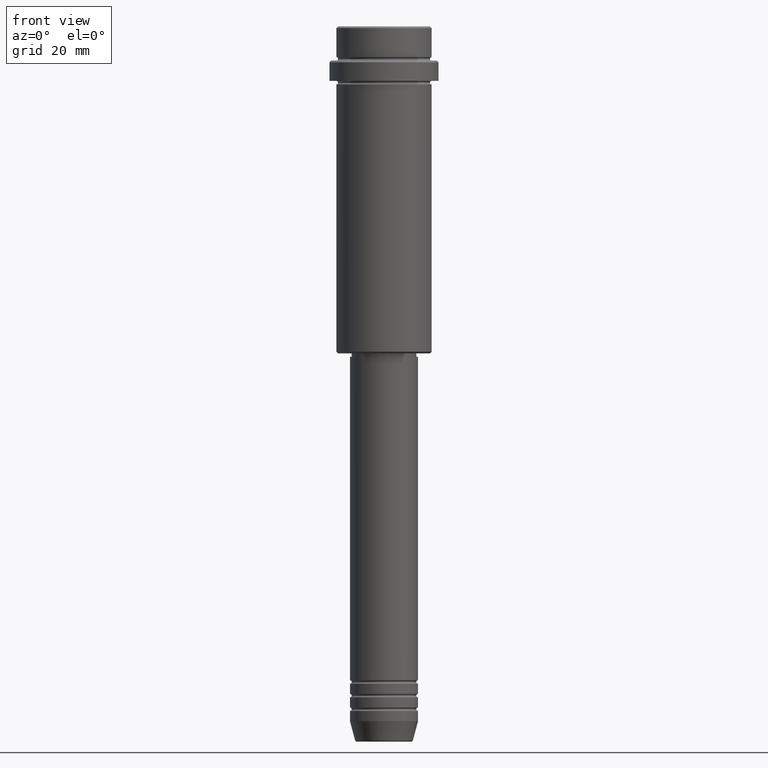
[diagram: clean part render]
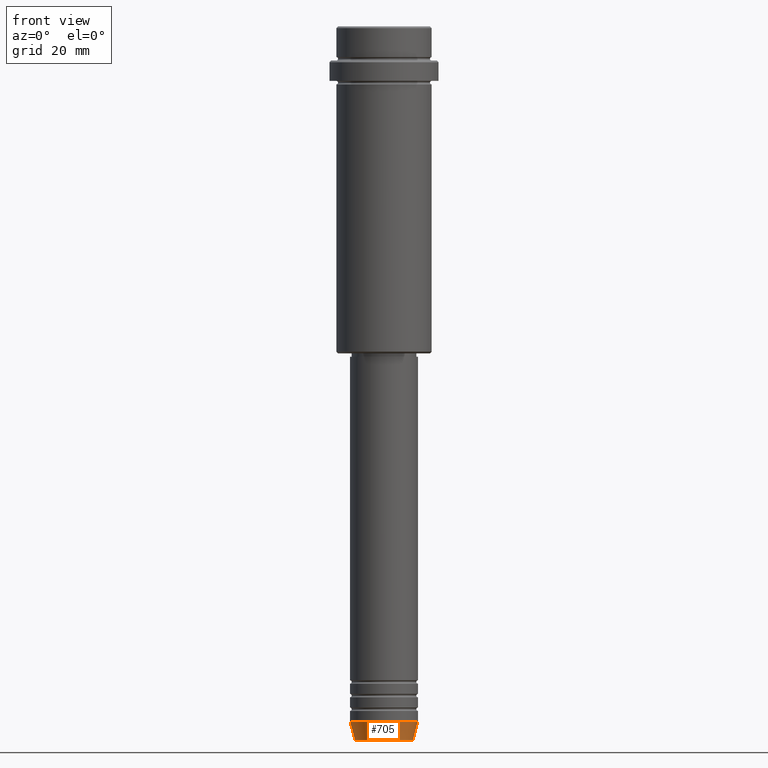
[diagram: same view with one face highlighted and labeled with its STEP entity id]
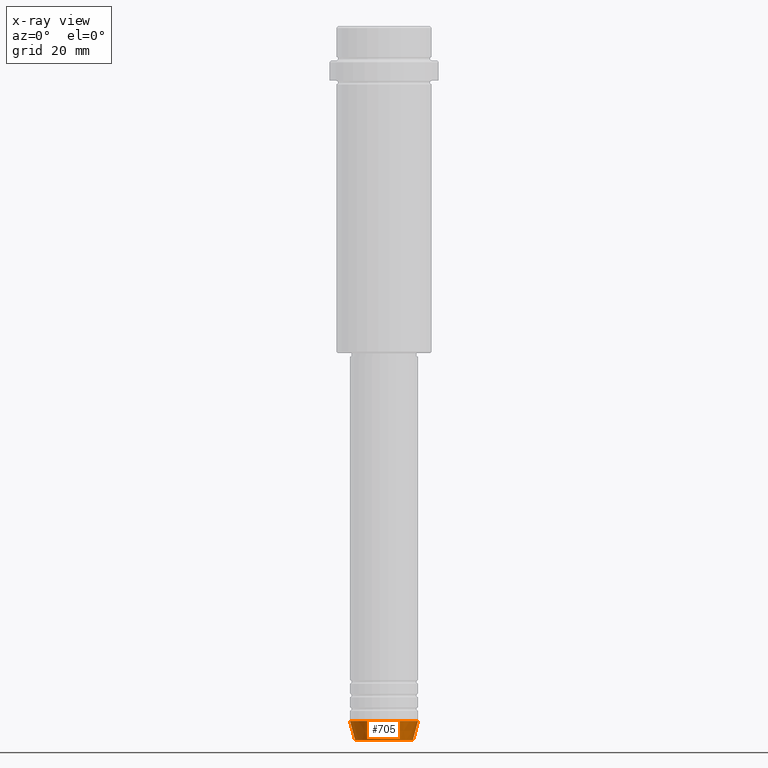
[diagram: x-ray of the same camera — body ghosted, the highlighted face saturated]
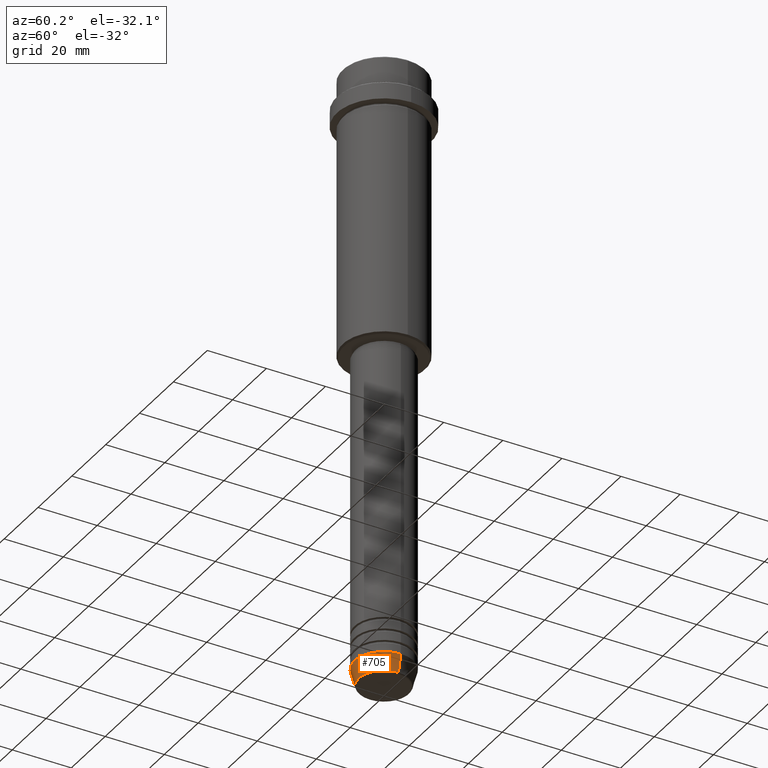
[diagram: same view with one face highlighted and labeled with its STEP entity id]
A machine part, front view. The second image highlights one B-rep face of the part: STEP entity #705.
The next image is the same camera in x-ray: the body ghosted, the highlighted face saturated — about 0% of this face is hidden behind the body in this view.
A second angle (auxiliary view) of the same face is appended — the face is thin or edge-on in the first view.
In plain terms, the highlighted conical surface has half-angle 15 deg.
Its self-contained STEP definition (entity closure, byte-faithful):
#71 = CARTESIAN_POINT ( 'NONE',  ( 10.00000000000000000, 0.000000000000000000, -204.0000000000000284 ) ) ;
#85 = VECTOR ( 'NONE', #928, 1000.000000000000114 ) ;
#206 = DIRECTION ( 'NONE',  ( -0.000000000000000000, -0.000000000000000000, 1.000000000000000000 ) ) ;
#222 = EDGE_CURVE ( 'NONE', #329, #614, #253, .T. ) ;
#239 = CARTESIAN_POINT ( 'NONE',  ( 0.000000000000000000, 0.000000000000000000, -204.0000000000000284 ) ) ;
#253 = CIRCLE ( 'NONE', #1013, 10.00000000000000000 ) ;
#259 = CARTESIAN_POINT ( 'NONE',  ( -10.00000000000000000, 1.224646799147353256E-15, -204.0000000000000284 ) ) ;
#293 = DIRECTION ( 'NONE',  ( 1.000000000000000000, 0.000000000000000000, 0.000000000000000000 ) ) ;
#314 = ORIENTED_EDGE ( 'NONE', *, *, #567, .T. ) ;
#329 = VERTEX_POINT ( 'NONE', #406 ) ;
#368 = DIRECTION ( 'NONE',  ( -0.000000000000000000, -0.000000000000000000, 1.000000000000000000 ) ) ;
#406 = CARTESIAN_POINT ( 'NONE',  ( -10.00000000000000000, 1.224646799147353256E-15, -204.0000000000000284 ) ) ;
#474 = FACE_OUTER_BOUND ( 'NONE', #1374, .T. ) ;
#477 = CARTESIAN_POINT ( 'NONE',  ( 8.491604264568309191, 0.000000000000000000, -209.6294095225512990 ) ) ;
#481 = AXIS2_PLACEMENT_3D ( 'NONE', #239, #368, #780 ) ;
#567 = EDGE_CURVE ( 'NONE', #1368, #614, #587, .T. ) ;
#572 = DIRECTION ( 'NONE',  ( -0.000000000000000000, -0.000000000000000000, 1.000000000000000000 ) ) ;
#587 = LINE ( 'NONE', #1146, #873 ) ;
#614 = VERTEX_POINT ( 'NONE', #71 ) ;
#636 = CARTESIAN_POINT ( 'NONE',  ( 0.000000000000000000, 0.000000000000000000, -204.0000000000000284 ) ) ;
#646 = ORIENTED_EDGE ( 'NONE', *, *, #222, .F. ) ;
#701 = LINE ( 'NONE', #259, #85 ) ;
#705 = ADVANCED_FACE ( 'NONE', ( #474 ), #992, .T. ) ;
#741 = CIRCLE ( 'NONE', #1364, 8.491604264568309191 ) ;
#778 = CARTESIAN_POINT ( 'NONE',  ( -8.491604264568309191, 1.132284198685156387E-15, -209.6294095225512990 ) ) ;
#780 = DIRECTION ( 'NONE',  ( 1.000000000000000000, 0.000000000000000000, 0.000000000000000000 ) ) ;
#873 = VECTOR ( 'NONE', #1150, 1000.000000000000114 ) ;
#928 = DIRECTION ( 'NONE',  ( -0.2588190451025211281, 3.169619151431769872E-17, 0.9659258262890680902 ) ) ;
#957 = VERTEX_POINT ( 'NONE', #778 ) ;
#992 = CONICAL_SURFACE ( 'NONE', #481, 10.00000000000000000, 0.2617993877991498519 ) ;
#996 = EDGE_CURVE ( 'NONE', #957, #1368, #741, .T. ) ;
#1013 = AXIS2_PLACEMENT_3D ( 'NONE', #636, #206, #293 ) ;
#1019 = DIRECTION ( 'NONE',  ( 1.000000000000000000, 0.000000000000000000, 0.000000000000000000 ) ) ;
#1136 = ORIENTED_EDGE ( 'NONE', *, *, #996, .T. ) ;
#1146 = CARTESIAN_POINT ( 'NONE',  ( 10.00000000000000000, 0.000000000000000000, -204.0000000000000284 ) ) ;
#1149 = ORIENTED_EDGE ( 'NONE', *, *, #1390, .F. ) ;
#1150 = DIRECTION ( 'NONE',  ( 0.2588190451025211281, 0.000000000000000000, 0.9659258262890680902 ) ) ;
#1344 = CARTESIAN_POINT ( 'NONE',  ( 0.000000000000000000, 0.000000000000000000, -209.6294095225512990 ) ) ;
#1364 = AXIS2_PLACEMENT_3D ( 'NONE', #1344, #572, #1019 ) ;
#1368 = VERTEX_POINT ( 'NONE', #477 ) ;
#1374 = EDGE_LOOP ( 'NONE', ( #1149, #1136, #314, #646 ) ) ;
#1390 = EDGE_CURVE ( 'NONE', #957, #329, #701, .T. ) ;